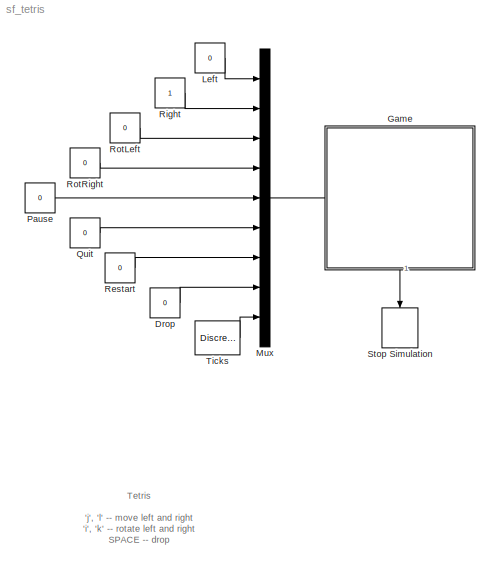
MODEL sf_tetris
KIND model
BLOCK [Constant] Drop
  Value = 0
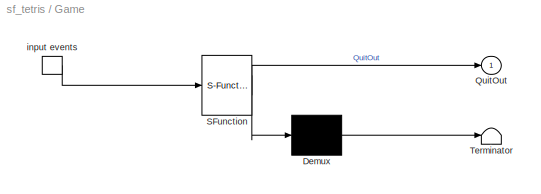
BLOCK [SubSystem] Game
  MaskDescription = Stateflow diagram
  MaskDisplay = plot(sf('Private','sfblk','xIcon'),sf('Private','sfblk','yIcon'));text(0.5,0,sf('Private', 'sfblk', 'tIcon'),'HorizontalAl','Center','VerticalAl','Bottom');
  MaskIconFrame = off
  MaskIconOpaque = off
  MaskIconRotate = none
  MaskIconUnits = autoscale
  MaskSelfModifiable = on
  MaskType = Stateflow
  MinAlgLoopOccurrences = off
  Ports = [0, 1, 0, 1]
  PropExecContextAcrossSSBoundary = on
  RTWSystemCode = Auto
  TreatAsAtomicUnit = on
BLOCK [Demux] Game/ Demux 
  Outputs = 1
  Ports = [1, 1]
BLOCK [S-Function] Game/ SFunction 
  FunctionName = sf_sfun
  PortCounts = [1 2]
  Ports = [1, 2]
  Tag = Stateflow S-Function sf_tetris 1
BLOCK [Terminator] Game/ Terminator 
BLOCK [TriggerPort] Game/ input events 
  Ports = [0, 1]
  ShowOutputPort = on
  TriggerType = either
BLOCK [Outport] Game/QuitOut
  IconDisplay = Port number
BLOCK [Constant] Left
  AttributesFormatString = \\n\\n
  Value = 0
BLOCK [Mux] Mux
  DisplayOption = bar
  Inputs = 9
  Ports = [9, 1]
BLOCK [Constant] Pause
  Value = 0
BLOCK [Constant] Quit
  Value = 0
BLOCK [Constant] Restart
  Value = 0
BLOCK [Constant] Right
BLOCK [Constant] RotLeft
  Value = 0
BLOCK [Constant] RotRight
  Value = 0
BLOCK [Stop] Stop Simulation
BLOCK [DiscretePulseGenerator] Ticks
  Ports = [0, 1]
  PulseType = Time based
  PulseWidth = 50
ANNOTATION (root): Tetris\n\n'j', 'l' -- move left and right\n'i', 'k' -- rotate left and right\n SPACE -- drop\n\n'p' -- pause\n'q' -- quit\n\nEdit sf_tetris_gui.m to change key bindings.\n\nWARNING: Game window must have focus to play.\n
LINE Drop:1 -> Mux:8
LINE Game/ Demux :1 -> Game/ Terminator :1
LINE Game/ SFunction :1 -> Game/ Demux :1
LINE Game/ SFunction :2 -> Game/QuitOut:1
LINE Game/ input events :1 -> Game/ SFunction :1
LINE Game:1 -> Stop Simulation:1
LINE Left:1 -> Mux:1
LINE Mux:1 -> Game:trigger
LINE Pause:1 -> Mux:5
LINE Quit:1 -> Mux:6
LINE Restart:1 -> Mux:7
LINE Right:1 -> Mux:2
LINE RotLeft:1 -> Mux:3
LINE RotRight:1 -> Mux:4
LINE Ticks:1 -> Mux:9
CHART Game states=9 transitions=122
  STATE_LABEL 'A\\nentry: ml.sf_tetris_gui(\\"paint\\",level,score);\\nexit: t = ml.cputime();'
  STATE_LABEL 'c = get(x,y)'
  STATE_LABEL 'e = set(x,y,c)'
  STATE_LABEL 'e = show(x,y,s,c)'
  STATE_LABEL 'r = okay(x,y,s)'
  STATE_LABEL 'ns = rot(s,right)'
  STATE_LABEL 'num = clear_rows()'
  STATE_LABEL 'P'
  STATE_LABEL "Q\\nentry:\\n  ml.sf_tetris_gui('gameover');\\n  QuitOut;"
